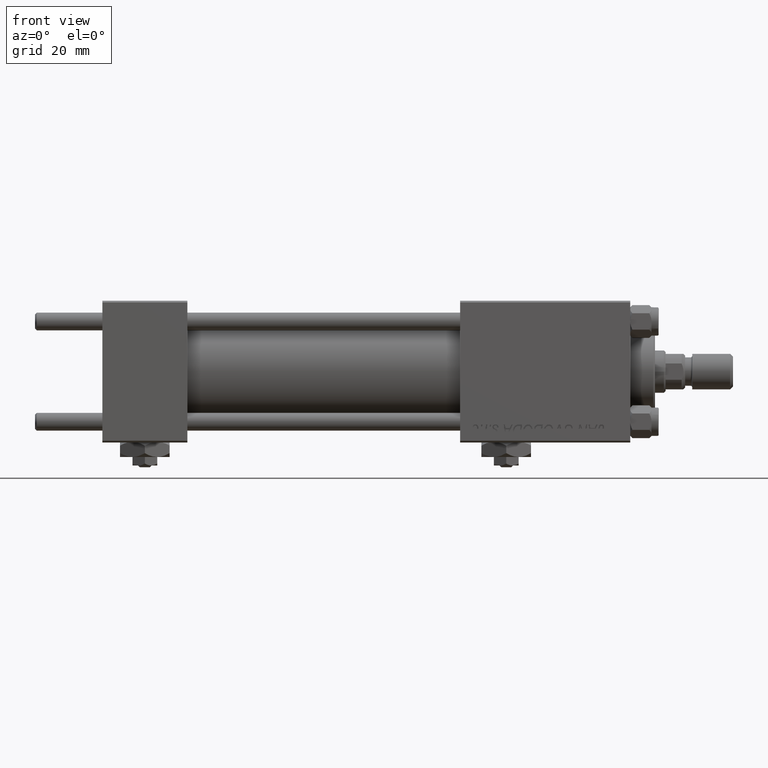
[diagram: clean part render]
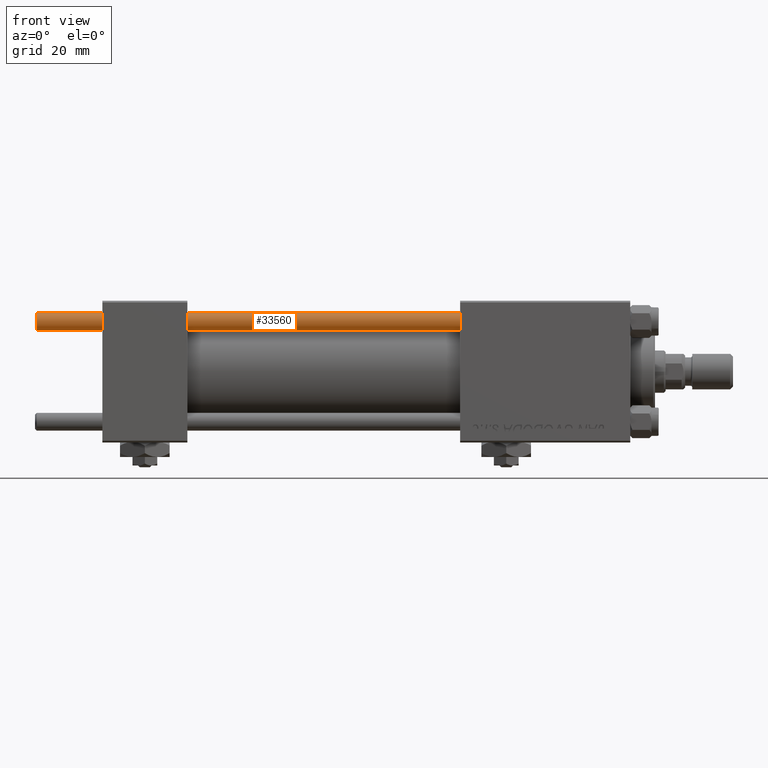
[diagram: same view with one face highlighted and labeled with its STEP entity id]
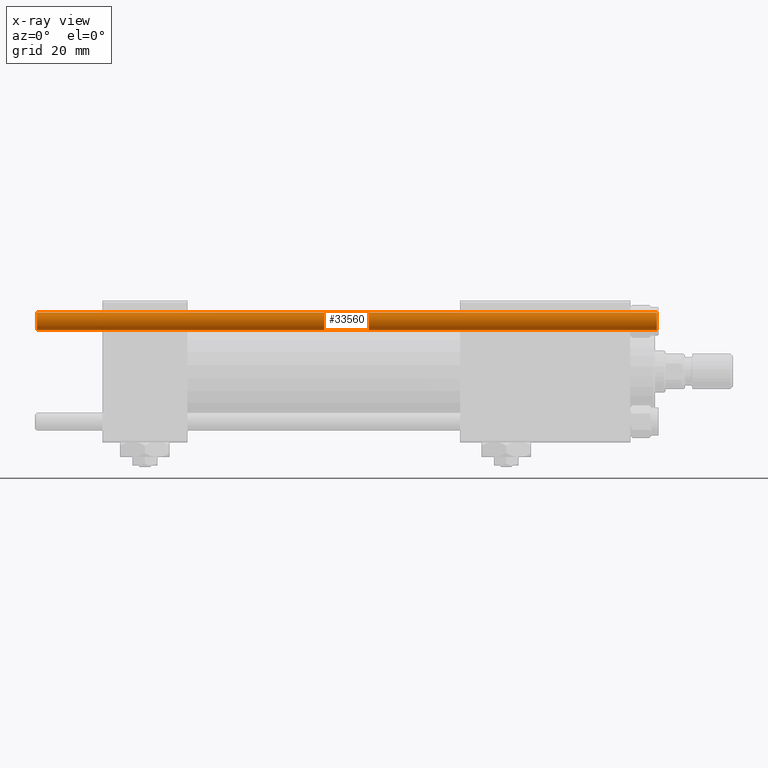
[diagram: x-ray of the same camera — body ghosted, the highlighted face saturated]
A machine part, front view. The second image highlights one B-rep face of the part: STEP entity #33560.
The next image is the same camera in x-ray: the body ghosted, the highlighted face saturated — about 0% of this face is hidden behind the body in this view.
In plain terms, the highlighted cylindrical surface (edge-blend (fillet) strip) has radius 2.5 mm, axis along (1, -0, 0).
Its self-contained STEP definition (entity closure, byte-faithful):
#1661 = VERTEX_POINT ( 'NONE', #5972 ) ;
#1925 = DIRECTION ( 'NONE',  ( -0.000000000000000000, -0.000000000000000000, -1.000000000000000000 ) ) ;
#3571 = ORIENTED_EDGE ( 'NONE', *, *, #43549, .F. ) ;
#3979 = CARTESIAN_POINT ( 'NONE',  ( -2.500000000000000000, 0.000000000000000000, 175.5000000000000000 ) ) ;
#5173 = CARTESIAN_POINT ( 'NONE',  ( 0.000000000000000000, 0.000000000000000000, 175.5000000000000000 ) ) ;
#5972 = CARTESIAN_POINT ( 'NONE',  ( 2.500000000000000000, 3.061616997868383141E-16, 175.5000000000000000 ) ) ;
#7217 = CYLINDRICAL_SURFACE ( 'NONE', #25030, 2.500000000000000000 ) ;
#8600 = ORIENTED_EDGE ( 'NONE', *, *, #42407, .T. ) ;
#12259 = CIRCLE ( 'NONE', #46821, 2.500000000000000000 ) ;
#14238 = VERTEX_POINT ( 'NONE', #49421 ) ;
#14336 = DIRECTION ( 'NONE',  ( -0.000000000000000000, -0.000000000000000000, -1.000000000000000000 ) ) ;
#17234 = EDGE_CURVE ( 'NONE', #1661, #20375, #18288, .T. ) ;
#18026 = DIRECTION ( 'NONE',  ( -1.000000000000000000, 0.000000000000000000, 0.000000000000000000 ) ) ;
#18269 = DIRECTION ( 'NONE',  ( 1.000000000000000000, 0.000000000000000000, 0.000000000000000000 ) ) ;
#18288 = LINE ( 'NONE', #29680, #30607 ) ;
#18500 = ORIENTED_EDGE ( 'NONE', *, *, #28892, .T. ) ;
#19534 = DIRECTION ( 'NONE',  ( -0.000000000000000000, -0.000000000000000000, 1.000000000000000000 ) ) ;
#20375 = VERTEX_POINT ( 'NONE', #30093 ) ;
#23234 = CARTESIAN_POINT ( 'NONE',  ( 0.000000000000000000, 0.000000000000000000, 0.5000000000000281997 ) ) ;
#24304 = CARTESIAN_POINT ( 'NONE',  ( -2.500000000000000000, 0.000000000000000000, 176.0000000000000000 ) ) ;
#25030 = AXIS2_PLACEMENT_3D ( 'NONE', #38102, #1925, #18026 ) ;
#28892 = EDGE_CURVE ( 'NONE', #20375, #14238, #12259, .T. ) ;
#29680 = CARTESIAN_POINT ( 'NONE',  ( 2.500000000000000000, 3.061616997868383141E-16, 176.0000000000000000 ) ) ;
#30093 = CARTESIAN_POINT ( 'NONE',  ( 2.500000000000000000, 3.061616997868383141E-16, 0.5000000000000281997 ) ) ;
#30607 = VECTOR ( 'NONE', #14336, 1000.000000000000000 ) ;
#31031 = VERTEX_POINT ( 'NONE', #3979 ) ;
#33171 = DIRECTION ( 'NONE',  ( 1.000000000000000000, 0.000000000000000000, 0.000000000000000000 ) ) ;
#33560 = ADVANCED_FACE ( 'NONE', ( #47362 ), #7217, .T. ) ;
#36703 = LINE ( 'NONE', #24304, #43819 ) ;
#37009 = CIRCLE ( 'NONE', #43783, 2.500000000000000000 ) ;
#37131 = DIRECTION ( 'NONE',  ( 0.000000000000000000, 0.000000000000000000, -1.000000000000000000 ) ) ;
#38102 = CARTESIAN_POINT ( 'NONE',  ( 0.000000000000000000, 0.000000000000000000, 176.0000000000000000 ) ) ;
#42407 = EDGE_CURVE ( 'NONE', #31031, #1661, #37009, .T. ) ;
#43549 = EDGE_CURVE ( 'NONE', #31031, #14238, #36703, .T. ) ;
#43783 = AXIS2_PLACEMENT_3D ( 'NONE', #5173, #37131, #33171 ) ;
#43819 = VECTOR ( 'NONE', #45407, 1000.000000000000000 ) ;
#45407 = DIRECTION ( 'NONE',  ( -0.000000000000000000, -0.000000000000000000, -1.000000000000000000 ) ) ;
#45497 = ORIENTED_EDGE ( 'NONE', *, *, #17234, .T. ) ;
#46821 = AXIS2_PLACEMENT_3D ( 'NONE', #23234, #19534, #18269 ) ;
#47362 = FACE_OUTER_BOUND ( 'NONE', #51674, .T. ) ;
#49421 = CARTESIAN_POINT ( 'NONE',  ( -2.500000000000000000, 0.000000000000000000, 0.5000000000000281997 ) ) ;
#51674 = EDGE_LOOP ( 'NONE', ( #8600, #45497, #18500, #3571 ) ) ;